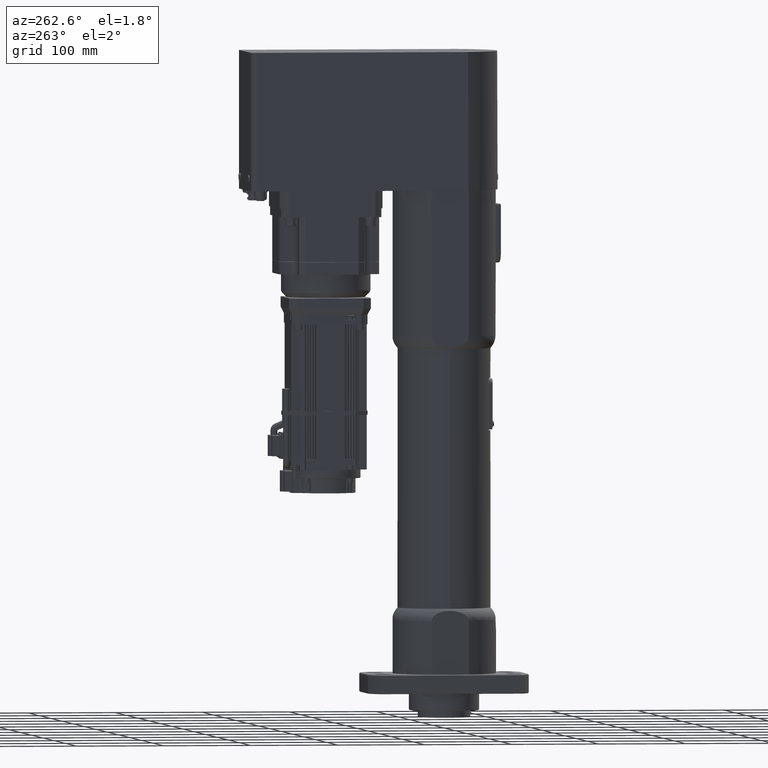
[diagram: clean part render]
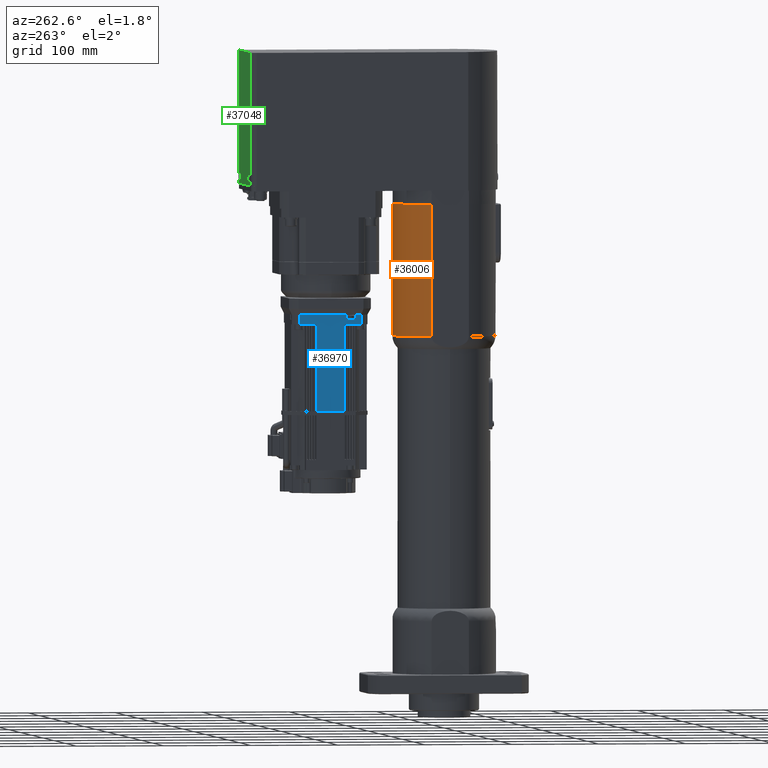
[diagram: same view with three faces highlighted in distinct colors, each labeled with its STEP entity id]
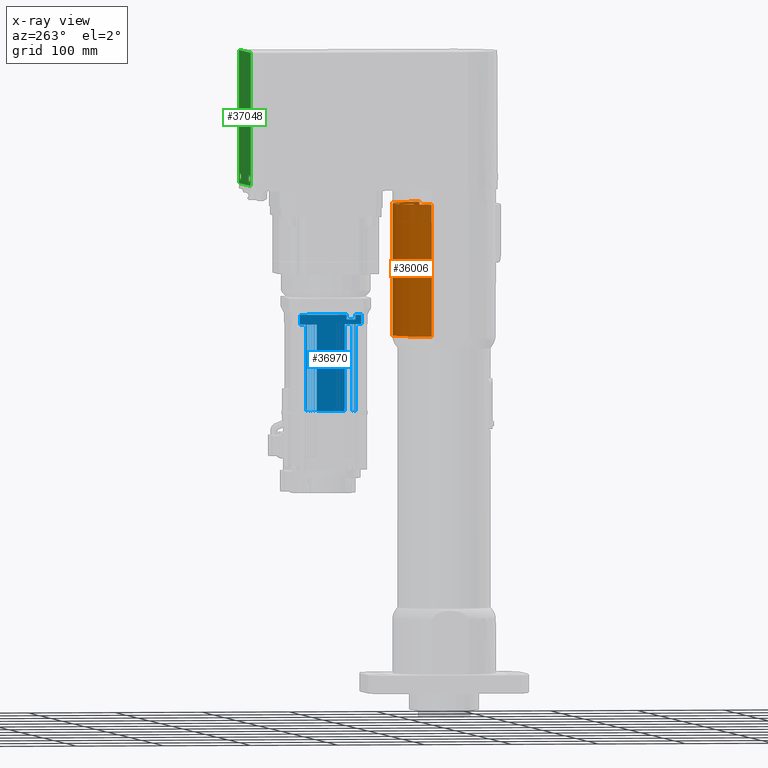
[diagram: x-ray of the same camera — body ghosted, the three highlighted faces saturated]
A machine part, auxiliary view with three faces highlighted in distinct colors.
The next image is the same camera in x-ray (body ghosted, the three faces saturated) — at least one of them is partly hidden behind the body in this view.
Their STEP definitions:

[orange] entity #36006 — the highlighted cylindrical surface (partial cylindrical patch) has radius 59 mm, axis along (-0, 0, 1).
#2676=FACE_OUTER_BOUND('',#4662,.T.);
#4662=EDGE_LOOP('',(#25355,#25356,#25357,#25358));
#6688=CIRCLE('',#38261,58.9999999999999);
#6863=CIRCLE('',#38623,59.0000000000015);
#8871=LINE('',#56543,#11638);
#8872=LINE('',#56544,#11639);
#11638=VECTOR('',#44380,10.);
#11639=VECTOR('',#44381,10.);
#14545=VERTEX_POINT('',#55377);
#14547=VERTEX_POINT('',#55383);
#14814=VERTEX_POINT('',#56457);
#14815=VERTEX_POINT('',#56493);
#18352=EDGE_CURVE('',#14545,#14547,#6688,.T.);
#18792=EDGE_CURVE('',#14814,#14815,#6863,.T.);
#18799=EDGE_CURVE('',#14814,#14547,#8871,.T.);
#18800=EDGE_CURVE('',#14545,#14815,#8872,.T.);
#25355=ORIENTED_EDGE('',*,*,#18799,.T.);
#25356=ORIENTED_EDGE('',*,*,#18352,.F.);
#25357=ORIENTED_EDGE('',*,*,#18800,.T.);
#25358=ORIENTED_EDGE('',*,*,#18792,.F.);
#33266=CYLINDRICAL_SURFACE('',#38628,59.);
#36006=ADVANCED_FACE('',(#2676),#33266,.T.);
#38261=AXIS2_PLACEMENT_3D('',#55384,#43438,#43439);
#38623=AXIS2_PLACEMENT_3D('',#56494,#44368,#44369);
#38628=AXIS2_PLACEMENT_3D('',#56542,#44378,#44379);
#43438=DIRECTION('center_axis',(-5.40408011473649E-16,5.62947358965345E-15,
1.));
#43439=DIRECTION('ref_axis',(0.932203389831797,0.361934855997742,-1.53373253282632E-15));
#44368=DIRECTION('center_axis',(5.35651779418735E-16,-5.62947358965345E-15,
-1.));
#44369=DIRECTION('ref_axis',(-0.932720166980504,0.360601012350022,-2.52960709256959E-15));
#44378=DIRECTION('center_axis',(-5.35651779418735E-16,5.62947358965345E-15,
1.));
#44379=DIRECTION('ref_axis',(-1.,3.43179211569662E-12,-5.35651779438055E-16));
#44380=DIRECTION('',(-5.35651779418735E-16,5.62947358965345E-15,1.));
#44381=DIRECTION('',(5.35651779418735E-16,-5.62947358965345E-15,-1.));
#55377=CARTESIAN_POINT('',(55.0000000000778,21.3541565040145,558.000000000004));
#55383=CARTESIAN_POINT('',(-54.999999999924,21.3541565044011,558.000000000004));
#55384=CARTESIAN_POINT('Origin',(1.81863061457175E-12,1.47781006703139E-10,
558.000000000004));
#56457=CARTESIAN_POINT('',(-54.9999999999253,21.3541565043827,407.282856857088));
#56493=CARTESIAN_POINT('',(55.0000000000733,21.3541565040017,407.282856857088));
#56494=CARTESIAN_POINT('Origin',(-2.6808714355797E-13,1.31301581851941E-10,
407.282856857088));
#56542=CARTESIAN_POINT('Origin',(4.54299374049786E-14,1.27735076589155E-10,
393.000000000001));
#56543=CARTESIAN_POINT('',(-54.9999999999253,21.3541565043826,393.));
#56544=CARTESIAN_POINT('',(55.0000000000733,21.3541565040016,393.000000000001));

[blue] entity #36970 — the highlighted planar face has unit normal (-1, -0, 0).
#1555=PLANE('',#40421);
#3640=FACE_OUTER_BOUND('',#5707,.T.);
#5707=EDGE_LOOP('',(#30461,#30462,#30463,#30464,#30465,#30466,#30467,#30468,
#30469,#30470,#30471,#30472,#30473,#30474,#30475,#30476,#30477,#30478,#30479,
#30480,#30481,#30482,#30483,#30484,#30485,#30486,#30487,#30488,#30489,#30490,
#30491,#30492,#30493,#30494,#30495,#30496,#30497,#30498,#30499,#30500,#30501,
#30502,#30503,#30504));
#9068=LINE('',#57528,#11835);
#9070=LINE('',#57531,#11837);
#9493=LINE('',#59920,#12260);
#9494=LINE('',#59925,#12261);
#9621=LINE('',#60313,#12388);
#10151=LINE('',#62043,#12918);
#10161=LINE('',#62072,#12928);
#10171=LINE('',#62101,#12938);
#10181=LINE('',#62130,#12948);
#10191=LINE('',#62159,#12958);
#10201=LINE('',#62188,#12968);
#10211=LINE('',#62217,#12978);
#10221=LINE('',#62246,#12988);
#10294=LINE('',#62398,#13061);
#10296=LINE('',#62403,#13063);
#10302=LINE('',#62414,#13069);
#10304=LINE('',#62419,#13071);
#10310=LINE('',#62430,#13077);
#10312=LINE('',#62435,#13079);
#10318=LINE('',#62446,#13085);
#10320=LINE('',#62451,#13087);
#10326=LINE('',#62462,#13093);
#10328=LINE('',#62467,#13095);
#10334=LINE('',#62478,#13101);
#10336=LINE('',#62483,#13103);
#10342=LINE('',#62494,#13109);
#10344=LINE('',#62499,#13111);
#10350=LINE('',#62510,#13117);
#10352=LINE('',#62515,#13119);
#10392=LINE('',#62622,#13159);
#10394=LINE('',#62631,#13161);
#10397=LINE('',#62636,#13164);
#10457=LINE('',#62797,#13224);
#10458=LINE('',#62798,#13225);
#10459=LINE('',#62799,#13226);
#10460=LINE('',#62800,#13227);
#10461=LINE('',#62801,#13228);
#10462=LINE('',#62802,#13229);
#10463=LINE('',#62803,#13230);
#10464=LINE('',#62804,#13231);
#10465=LINE('',#62805,#13232);
#10466=LINE('',#62807,#13233);
#10467=LINE('',#62809,#13234);
#10468=LINE('',#62810,#13235);
#11835=VECTOR('',#45163,70.53367989833);
#11837=VECTOR('',#45165,70.53367989833);
#12260=VECTOR('',#46812,10.);
#12261=VECTOR('',#46817,10.);
#12388=VECTOR('',#47154,10.);
#12918=VECTOR('',#48834,10.);
#12928=VECTOR('',#48858,10.);
#12938=VECTOR('',#48882,10.);
#12948=VECTOR('',#48906,10.);
#12958=VECTOR('',#48930,10.);
#12968=VECTOR('',#48954,10.);
#12978=VECTOR('',#48978,10.);
#12988=VECTOR('',#49002,10.);
#13061=VECTOR('',#49153,10.);
#13063=VECTOR('',#49159,10.);
#13069=VECTOR('',#49169,10.);
#13071=VECTOR('',#49175,10.);
#13077=VECTOR('',#49185,10.);
#13079=VECTOR('',#49191,10.);
#13085=VECTOR('',#49201,10.);
#13087=VECTOR('',#49207,10.);
#13093=VECTOR('',#49217,10.);
#13095=VECTOR('',#49223,10.);
#13101=VECTOR('',#49233,10.);
#13103=VECTOR('',#49239,10.);
#13109=VECTOR('',#49249,10.);
#13111=VECTOR('',#49255,10.);
#13117=VECTOR('',#49265,10.);
#13119=VECTOR('',#49271,10.);
#13159=VECTOR('',#49377,10.);
#13161=VECTOR('',#49387,10.);
#13164=VECTOR('',#49394,10.);
#13224=VECTOR('',#49552,10.);
#13225=VECTOR('',#49553,10.);
#13226=VECTOR('',#49554,10.);
#13227=VECTOR('',#49555,10.);
#13228=VECTOR('',#49556,10.);
#13229=VECTOR('',#49557,10.);
#13230=VECTOR('',#49558,10.);
#13231=VECTOR('',#49559,10.);
#13232=VECTOR('',#49560,10.);
#13233=VECTOR('',#49561,10.);
#13234=VECTOR('',#49562,10.);
#13235=VECTOR('',#49563,10.);
#15044=VERTEX_POINT('',#57423);
#15046=VERTEX_POINT('',#57434);
#15068=VERTEX_POINT('',#57527);
#15069=VERTEX_POINT('',#57529);
#15589=VERTEX_POINT('',#59916);
#15592=VERTEX_POINT('',#59923);
#15736=VERTEX_POINT('',#60310);
#15737=VERTEX_POINT('',#60312);
#16298=VERTEX_POINT('',#62041);
#16299=VERTEX_POINT('',#62042);
#16310=VERTEX_POINT('',#62070);
#16311=VERTEX_POINT('',#62071);
#16322=VERTEX_POINT('',#62099);
#16323=VERTEX_POINT('',#62100);
#16334=VERTEX_POINT('',#62128);
#16335=VERTEX_POINT('',#62129);
#16346=VERTEX_POINT('',#62157);
#16347=VERTEX_POINT('',#62158);
#16358=VERTEX_POINT('',#62186);
#16359=VERTEX_POINT('',#62187);
#16370=VERTEX_POINT('',#62215);
#16371=VERTEX_POINT('',#62216);
#16382=VERTEX_POINT('',#62244);
#16383=VERTEX_POINT('',#62245);
#16423=VERTEX_POINT('',#62396);
#16424=VERTEX_POINT('',#62402);
#16427=VERTEX_POINT('',#62412);
#16428=VERTEX_POINT('',#62418);
#16431=VERTEX_POINT('',#62428);
#16432=VERTEX_POINT('',#62434);
#16435=VERTEX_POINT('',#62444);
#16436=VERTEX_POINT('',#62450);
#16439=VERTEX_POINT('',#62460);
#16440=VERTEX_POINT('',#62466);
#16443=VERTEX_POINT('',#62476);
#16444=VERTEX_POINT('',#62482);
#16447=VERTEX_POINT('',#62492);
#16448=VERTEX_POINT('',#62498);
#16451=VERTEX_POINT('',#62508);
#16452=VERTEX_POINT('',#62514);
#16484=VERTEX_POINT('',#62618);
#16486=VERTEX_POINT('',#62621);
#16542=VERTEX_POINT('',#62806);
#16543=VERTEX_POINT('',#62808);
#19181=EDGE_CURVE('',#15068,#15046,#9068,.T.);
#19183=EDGE_CURVE('',#15044,#15069,#9070,.T.);
#20018=EDGE_CURVE('',#15044,#15589,#9493,.T.);
#20020=EDGE_CURVE('',#15046,#15592,#9494,.T.);
#20209=EDGE_CURVE('',#15737,#15736,#9621,.T.);
#21032=EDGE_CURVE('',#16298,#16299,#10151,.T.);
#21046=EDGE_CURVE('',#16310,#16311,#10161,.T.);
#21060=EDGE_CURVE('',#16322,#16323,#10171,.T.);
#21074=EDGE_CURVE('',#16334,#16335,#10181,.T.);
#21088=EDGE_CURVE('',#16346,#16347,#10191,.T.);
#21102=EDGE_CURVE('',#16358,#16359,#10201,.T.);
#21116=EDGE_CURVE('',#16370,#16371,#10211,.T.);
#21130=EDGE_CURVE('',#16382,#16383,#10221,.T.);
#21207=EDGE_CURVE('',#16423,#16323,#10294,.T.);
#21209=EDGE_CURVE('',#16322,#16424,#10296,.T.);
#21215=EDGE_CURVE('',#16427,#16371,#10302,.T.);
#21217=EDGE_CURVE('',#16370,#16428,#10304,.T.);
#21223=EDGE_CURVE('',#16431,#16359,#10310,.T.);
#21225=EDGE_CURVE('',#16358,#16432,#10312,.T.);
#21231=EDGE_CURVE('',#16435,#16311,#10318,.T.);
#21233=EDGE_CURVE('',#16310,#16436,#10320,.T.);
#21239=EDGE_CURVE('',#16439,#16335,#10326,.T.);
#21241=EDGE_CURVE('',#16334,#16440,#10328,.T.);
#21247=EDGE_CURVE('',#16443,#16383,#10334,.T.);
#21249=EDGE_CURVE('',#16382,#16444,#10336,.T.);
#21255=EDGE_CURVE('',#16447,#16347,#10342,.T.);
#21257=EDGE_CURVE('',#16346,#16448,#10344,.T.);
#21263=EDGE_CURVE('',#16451,#16299,#10350,.T.);
#21265=EDGE_CURVE('',#16298,#16452,#10352,.T.);
#21317=EDGE_CURVE('',#16486,#16484,#10392,.T.);
#21322=EDGE_CURVE('',#16484,#15068,#10394,.T.);
#21325=EDGE_CURVE('',#15069,#16486,#10397,.T.);
#21402=EDGE_CURVE('',#16451,#16448,#10457,.T.);
#21403=EDGE_CURVE('',#16447,#16444,#10458,.T.);
#21404=EDGE_CURVE('',#16443,#16440,#10459,.T.);
#21405=EDGE_CURVE('',#16439,#16436,#10460,.T.);
#21406=EDGE_CURVE('',#16435,#16432,#10461,.T.);
#21407=EDGE_CURVE('',#16431,#16428,#10462,.T.);
#21408=EDGE_CURVE('',#16427,#16424,#10463,.T.);
#21409=EDGE_CURVE('',#16423,#15737,#10464,.T.);
#21410=EDGE_CURVE('',#15736,#15589,#10465,.T.);
#21411=EDGE_CURVE('',#15592,#16542,#10466,.T.);
#21412=EDGE_CURVE('',#16542,#16543,#10467,.T.);
#21413=EDGE_CURVE('',#16543,#16452,#10468,.T.);
#30461=ORIENTED_EDGE('',*,*,#21402,.T.);
#30462=ORIENTED_EDGE('',*,*,#21257,.F.);
#30463=ORIENTED_EDGE('',*,*,#21088,.T.);
#30464=ORIENTED_EDGE('',*,*,#21255,.F.);
#30465=ORIENTED_EDGE('',*,*,#21403,.T.);
#30466=ORIENTED_EDGE('',*,*,#21249,.F.);
#30467=ORIENTED_EDGE('',*,*,#21130,.T.);
#30468=ORIENTED_EDGE('',*,*,#21247,.F.);
#30469=ORIENTED_EDGE('',*,*,#21404,.T.);
#30470=ORIENTED_EDGE('',*,*,#21241,.F.);
#30471=ORIENTED_EDGE('',*,*,#21074,.T.);
#30472=ORIENTED_EDGE('',*,*,#21239,.F.);
#30473=ORIENTED_EDGE('',*,*,#21405,.T.);
#30474=ORIENTED_EDGE('',*,*,#21233,.F.);
#30475=ORIENTED_EDGE('',*,*,#21046,.T.);
#30476=ORIENTED_EDGE('',*,*,#21231,.F.);
#30477=ORIENTED_EDGE('',*,*,#21406,.T.);
#30478=ORIENTED_EDGE('',*,*,#21225,.F.);
#30479=ORIENTED_EDGE('',*,*,#21102,.T.);
#30480=ORIENTED_EDGE('',*,*,#21223,.F.);
#30481=ORIENTED_EDGE('',*,*,#21407,.T.);
#30482=ORIENTED_EDGE('',*,*,#21217,.F.);
#30483=ORIENTED_EDGE('',*,*,#21116,.T.);
#30484=ORIENTED_EDGE('',*,*,#21215,.F.);
#30485=ORIENTED_EDGE('',*,*,#21408,.T.);
#30486=ORIENTED_EDGE('',*,*,#21209,.F.);
#30487=ORIENTED_EDGE('',*,*,#21060,.T.);
#30488=ORIENTED_EDGE('',*,*,#21207,.F.);
#30489=ORIENTED_EDGE('',*,*,#21409,.T.);
#30490=ORIENTED_EDGE('',*,*,#20209,.T.);
#30491=ORIENTED_EDGE('',*,*,#21410,.T.);
#30492=ORIENTED_EDGE('',*,*,#20018,.F.);
#30493=ORIENTED_EDGE('',*,*,#19183,.T.);
#30494=ORIENTED_EDGE('',*,*,#21325,.T.);
#30495=ORIENTED_EDGE('',*,*,#21317,.T.);
#30496=ORIENTED_EDGE('',*,*,#21322,.T.);
#30497=ORIENTED_EDGE('',*,*,#19181,.T.);
#30498=ORIENTED_EDGE('',*,*,#20020,.T.);
#30499=ORIENTED_EDGE('',*,*,#21411,.T.);
#30500=ORIENTED_EDGE('',*,*,#21412,.T.);
#30501=ORIENTED_EDGE('',*,*,#21413,.T.);
#30502=ORIENTED_EDGE('',*,*,#21265,.F.);
#30503=ORIENTED_EDGE('',*,*,#21032,.T.);
#30504=ORIENTED_EDGE('',*,*,#21263,.F.);
#36970=ADVANCED_FACE('',(#3640),#1555,.T.);
#40421=AXIS2_PLACEMENT_3D('',#62796,#49550,#49551);
#45163=DIRECTION('',(-6.24109060434125E-13,1.,-5.62947358965379E-15));
#45165=DIRECTION('',(-6.24109060434125E-13,1.,-5.62947358965379E-15));
#46812=DIRECTION('',(-2.75130738459485E-16,-5.62947358965396E-15,-1.));
#46817=DIRECTION('',(-2.75130738459485E-16,-5.62947358965396E-15,-1.));
#47154=DIRECTION('',(2.75130738459485E-16,5.62947358965396E-15,1.));
#48834=DIRECTION('',(6.25302550185597E-13,-1.,4.60703461895537E-15));
#48858=DIRECTION('',(6.25302550185597E-13,-1.,6.08733198512224E-15));
#48882=DIRECTION('',(6.25302550185597E-13,-1.,6.08733198512224E-15));
#48906=DIRECTION('',(6.25302550185597E-13,-1.,6.08733198512224E-15));
#48930=DIRECTION('',(6.25302550185597E-13,-1.,4.60703461895537E-15));
#48954=DIRECTION('',(6.25302550185597E-13,-1.,4.60703461895537E-15));
#48978=DIRECTION('',(6.25302550185597E-13,-1.,4.60703461895537E-15));
#49002=DIRECTION('',(6.25302550185597E-13,-1.,6.08733198512224E-15));
#49153=DIRECTION('',(2.75130738460098E-16,4.65029006147341E-15,1.));
#49159=DIRECTION('',(-2.75130738460089E-16,-4.66470854231269E-15,-1.));
#49169=DIRECTION('',(2.75130738460152E-16,4.56377917643768E-15,1.));
#49175=DIRECTION('',(-2.75130738460106E-16,-4.63587158063412E-15,-1.));
#49185=DIRECTION('',(2.75130738460377E-16,4.20331715545548E-15,1.));
#49191=DIRECTION('',(-2.75130738460359E-16,-4.23215411713406E-15,-1.));
#49201=DIRECTION('',(2.75130738460287E-16,4.34750196384836E-15,1.));
#49207=DIRECTION('',(-2.75130738460197E-16,-4.49168677224124E-15,-1.));
#49217=DIRECTION('',(2.75130738460089E-16,4.66470854231269E-15,1.));
#49223=DIRECTION('',(-2.75130738460052E-16,-4.72238246566984E-15,-1.));
#49233=DIRECTION('',(2.751307384598E-16,5.1260999291699E-15,1.));
#49239=DIRECTION('',(-2.751307384598E-16,-5.1260999291699E-15,-1.));
#49249=DIRECTION('',(2.75130738460089E-16,4.66470854231269E-15,1.));
#49255=DIRECTION('',(-2.75130738460089E-16,-4.66470854231269E-15,-1.));
#49265=DIRECTION('',(2.75130738460125E-16,4.60703461895554E-15,1.));
#49271=DIRECTION('',(-2.75130738460016E-16,-4.78005638902699E-15,-1.));
#49377=DIRECTION('',(-6.25302550185597E-13,1.,-5.11825410430458E-15));
#49387=DIRECTION('',(2.75130738459805E-16,5.11825410430475E-15,1.));
#49394=DIRECTION('',(-2.75130738459805E-16,-5.11825410430475E-15,-1.));
#49550=DIRECTION('center_axis',(-1.,-6.25302550185597E-13,2.75130738463005E-16));
#49551=DIRECTION('ref_axis',(-6.25302550185597E-13,1.,-5.62947358965379E-15));
#49552=DIRECTION('',(6.25302550185597E-13,-1.,5.62947358965379E-15));
#49553=DIRECTION('',(6.25302550185597E-13,-1.,5.62947358965379E-15));
#49554=DIRECTION('',(6.25302550185597E-13,-1.,5.62947358965379E-15));
#49555=DIRECTION('',(6.25302550185597E-13,-1.,5.62947358965379E-15));
#49556=DIRECTION('',(6.25302550185597E-13,-1.,5.62947358965379E-15));
#49557=DIRECTION('',(6.25302550185597E-13,-1.,5.62947358965379E-15));
#49558=DIRECTION('',(6.25302550185597E-13,-1.,5.62947358965379E-15));
#49559=DIRECTION('',(6.25302550185597E-13,-1.,5.62947358965379E-15));
#49560=DIRECTION('',(6.25302550185597E-13,-1.,5.62947358965379E-15));
#49561=DIRECTION('',(6.25302550185597E-13,-1.,5.62947358965379E-15));
#49562=DIRECTION('',(-2.75130738459485E-16,-5.62947358965396E-15,-1.));
#49563=DIRECTION('',(6.25302550185597E-13,-1.,5.62947358965379E-15));
#57423=CARTESIAN_POINT('',(-43.5000000000883,100.733160050997,432.50000000001));
#57434=CARTESIAN_POINT('',(-43.5000000001323,171.266839949317,432.50000000001));
#57527=CARTESIAN_POINT('',(-43.5000000000988,117.500000000156,432.50000000001));
#57528=CARTESIAN_POINT('',(-43.5000000000883,100.733160050997,432.50000000001));
#57529=CARTESIAN_POINT('',(-43.5000000000925,107.500000000156,432.50000000001));
#57531=CARTESIAN_POINT('',(-43.5000000000883,100.733160050997,432.50000000001));
#59916=CARTESIAN_POINT('',(-43.5000000000883,100.733160050992,421.50000000001));
#59920=CARTESIAN_POINT('',(-43.5000000000883,100.733160050992,432.50000000001));
#59923=CARTESIAN_POINT('',(-43.5000000001324,171.266839949321,421.50000000001));
#59925=CARTESIAN_POINT('',(-43.5000000001324,171.266839949321,432.50000000001));
#60310=CARTESIAN_POINT('',(-43.5000000000925,107.500000000156,421.50000000001));
#60312=CARTESIAN_POINT('',(-43.5000000000925,107.500000000156,322.50000000001));
#60313=CARTESIAN_POINT('',(-43.5000000000925,107.500000000156,344.00000000001));
#62041=CARTESIAN_POINT('',(-43.5000000001276,163.600000000156,421.50000000001));
#62042=CARTESIAN_POINT('',(-43.5000000001259,160.900000000156,421.50000000001));
#62043=CARTESIAN_POINT('',(-43.5000000001077,131.866580025574,421.50000000001));
#62070=CARTESIAN_POINT('',(-43.5000000001004,120.100000000156,421.50000000001));
#62071=CARTESIAN_POINT('',(-43.5000000000987,117.400000000156,421.50000000001));
#62072=CARTESIAN_POINT('',(-43.5000000000941,110.116580025574,421.50000000001));
#62099=CARTESIAN_POINT('',(-43.5000000000947,111.100000000156,421.50000000001));
#62100=CARTESIAN_POINT('',(-43.5000000000931,108.400000000156,421.50000000001));
#62101=CARTESIAN_POINT('',(-43.5000000000913,105.616580025574,421.50000000001));
#62128=CARTESIAN_POINT('',(-43.5000000001219,154.600000000156,421.50000000001));
#62129=CARTESIAN_POINT('',(-43.5000000001202,151.900000000156,421.50000000001));
#62130=CARTESIAN_POINT('',(-43.5000000001049,127.366580025574,421.50000000001));
#62157=CARTESIAN_POINT('',(-43.5000000001257,160.600000000156,421.50000000001));
#62158=CARTESIAN_POINT('',(-43.500000000124,157.900000000156,421.50000000001));
#62159=CARTESIAN_POINT('',(-43.5000000001068,130.366580025574,421.50000000001));
#62186=CARTESIAN_POINT('',(-43.5000000000985,117.100000000156,421.50000000001));
#62187=CARTESIAN_POINT('',(-43.5000000000968,114.400000000156,421.50000000001));
#62188=CARTESIAN_POINT('',(-43.5000000000932,108.616580025574,421.50000000001));
#62215=CARTESIAN_POINT('',(-43.5000000000966,114.100000000156,421.50000000001));
#62216=CARTESIAN_POINT('',(-43.5000000000949,111.400000000156,421.50000000001));
#62217=CARTESIAN_POINT('',(-43.5000000000922,107.116580025574,421.50000000001));
#62244=CARTESIAN_POINT('',(-43.5000000001238,157.600000000156,421.50000000001));
#62245=CARTESIAN_POINT('',(-43.5000000001221,154.900000000156,421.50000000001));
#62246=CARTESIAN_POINT('',(-43.5000000001058,128.866580025574,421.50000000001));
#62396=CARTESIAN_POINT('',(-43.5000000000931,108.400000000156,322.50000000001));
#62398=CARTESIAN_POINT('',(-43.5000000000931,108.400000000156,427.00000000001));
#62402=CARTESIAN_POINT('',(-43.5000000000948,111.100000000156,322.50000000001));
#62403=CARTESIAN_POINT('',(-43.5000000000948,111.100000000156,350.00000000001));
#62412=CARTESIAN_POINT('',(-43.5000000000949,111.400000000156,322.50000000001));
#62414=CARTESIAN_POINT('',(-43.5000000000949,111.400000000156,427.00000000001));
#62418=CARTESIAN_POINT('',(-43.5000000000966,114.100000000156,322.50000000001));
#62419=CARTESIAN_POINT('',(-43.5000000000966,114.100000000156,350.00000000001));
#62428=CARTESIAN_POINT('',(-43.5000000000968,114.400000000156,322.50000000001));
#62430=CARTESIAN_POINT('',(-43.5000000000968,114.400000000156,427.00000000001));
#62434=CARTESIAN_POINT('',(-43.5000000000985,117.100000000156,322.50000000001));
#62435=CARTESIAN_POINT('',(-43.5000000000985,117.100000000156,350.00000000001));
#62444=CARTESIAN_POINT('',(-43.5000000000987,117.400000000156,322.50000000001));
#62446=CARTESIAN_POINT('',(-43.5000000000987,117.400000000156,427.00000000001));
#62450=CARTESIAN_POINT('',(-43.5000000001004,120.100000000156,322.50000000001));
#62451=CARTESIAN_POINT('',(-43.5000000001004,120.100000000156,350.00000000001));
#62460=CARTESIAN_POINT('',(-43.5000000001203,151.900000000156,322.50000000001));
#62462=CARTESIAN_POINT('',(-43.5000000001202,151.900000000156,427.00000000001));
#62466=CARTESIAN_POINT('',(-43.500000000122,154.600000000156,322.50000000001));
#62467=CARTESIAN_POINT('',(-43.500000000122,154.600000000156,350.00000000001));
#62476=CARTESIAN_POINT('',(-43.5000000001222,154.900000000156,322.50000000001));
#62478=CARTESIAN_POINT('',(-43.5000000001221,154.900000000156,427.00000000001));
#62482=CARTESIAN_POINT('',(-43.5000000001238,157.600000000156,322.50000000001));
#62483=CARTESIAN_POINT('',(-43.5000000001238,157.600000000156,350.00000000001));
#62492=CARTESIAN_POINT('',(-43.500000000124,157.900000000156,322.50000000001));
#62494=CARTESIAN_POINT('',(-43.500000000124,157.900000000156,427.00000000001));
#62498=CARTESIAN_POINT('',(-43.5000000001257,160.600000000156,322.50000000001));
#62499=CARTESIAN_POINT('',(-43.5000000001257,160.600000000156,350.00000000001));
#62508=CARTESIAN_POINT('',(-43.5000000001259,160.900000000156,322.50000000001));
#62510=CARTESIAN_POINT('',(-43.5000000001259,160.900000000156,427.00000000001));
#62514=CARTESIAN_POINT('',(-43.5000000001276,163.600000000156,322.50000000001));
#62515=CARTESIAN_POINT('',(-43.5000000001276,163.600000000156,350.00000000001));
#62618=CARTESIAN_POINT('',(-43.5000000000988,117.500000000156,427.00000000001));
#62621=CARTESIAN_POINT('',(-43.5000000000925,107.500000000156,427.00000000001));
#62622=CARTESIAN_POINT('',(-43.5000000000919,106.616580025574,427.00000000001));
#62631=CARTESIAN_POINT('',(-43.5000000000987,117.500000000156,432.50000000001));
#62636=CARTESIAN_POINT('',(-43.5000000000925,107.500000000156,432.50000000001));
#62796=CARTESIAN_POINT('Origin',(-43.5000000000883,100.733160050992,432.50000000001));
#62797=CARTESIAN_POINT('',(-43.5000000001006,120.366580025574,322.50000000001));
#62798=CARTESIAN_POINT('',(-43.5000000001006,120.366580025574,322.50000000001));
#62799=CARTESIAN_POINT('',(-43.5000000001006,120.366580025574,322.50000000001));
#62800=CARTESIAN_POINT('',(-43.5000000001006,120.366580025574,322.50000000001));
#62801=CARTESIAN_POINT('',(-43.5000000001006,120.366580025574,322.50000000001));
#62802=CARTESIAN_POINT('',(-43.5000000001006,120.366580025574,322.50000000001));
#62803=CARTESIAN_POINT('',(-43.5000000001006,120.366580025574,322.50000000001));
#62804=CARTESIAN_POINT('',(-43.5000000001006,120.366580025574,322.50000000001));
#62805=CARTESIAN_POINT('',(-43.500000000088,100.366580025574,421.50000000001));
#62806=CARTESIAN_POINT('',(-43.5000000001281,164.500000000156,421.50000000001));
#62807=CARTESIAN_POINT('',(-43.5000000001105,136.366580025574,421.50000000001));
#62808=CARTESIAN_POINT('',(-43.5000000001282,164.500000000156,322.50000000001));
#62809=CARTESIAN_POINT('',(-43.5000000001282,164.500000000156,344.00000000001));
#62810=CARTESIAN_POINT('',(-43.5000000001006,120.366580025574,322.50000000001));

[green] entity #37048 — the highlighted planar face has unit normal (0, 1, -0).
#411=FACE_BOUND('',#5791,.T.);
#412=FACE_BOUND('',#5792,.T.);
#1616=PLANE('',#40536);
#3718=FACE_OUTER_BOUND('',#5790,.T.);
#5790=EDGE_LOOP('',(#31251,#31252,#31253,#31254));
#5791=EDGE_LOOP('',(#31255,#31256));
#5792=EDGE_LOOP('',(#31257,#31258));
#6558=CIRCLE('',#37967,4.);
#6559=CIRCLE('',#37968,4.);
#7723=CIRCLE('',#40537,4.);
#7724=CIRCLE('',#40538,4.);
#8749=LINE('',#55647,#11516);
#10648=LINE('',#63171,#13415);
#10653=LINE('',#63180,#13420);
#10654=LINE('',#63182,#13421);
#11516=VECTOR('',#43722,10.);
#13415=VECTOR('',#49963,10.);
#13420=VECTOR('',#49976,10.);
#13421=VECTOR('',#49979,10.);
#14234=VERTEX_POINT('',#53886);
#14235=VERTEX_POINT('',#53887);
#14611=VERTEX_POINT('',#55644);
#14612=VERTEX_POINT('',#55646);
#16613=VERTEX_POINT('',#63168);
#16614=VERTEX_POINT('',#63170);
#16615=VERTEX_POINT('',#63183);
#16616=VERTEX_POINT('',#63184);
#17900=EDGE_CURVE('',#14234,#14235,#6558,.T.);
#17901=EDGE_CURVE('',#14235,#14234,#6559,.T.);
#18481=EDGE_CURVE('',#14611,#14612,#8749,.T.);
#21629=EDGE_CURVE('',#16613,#16614,#10648,.T.);
#21635=EDGE_CURVE('',#14612,#16613,#10653,.T.);
#21636=EDGE_CURVE('',#14611,#16614,#10654,.T.);
#21637=EDGE_CURVE('',#16615,#16616,#7723,.T.);
#21638=EDGE_CURVE('',#16616,#16615,#7724,.T.);
#31251=ORIENTED_EDGE('',*,*,#18481,.F.);
#31252=ORIENTED_EDGE('',*,*,#21636,.T.);
#31253=ORIENTED_EDGE('',*,*,#21629,.F.);
#31254=ORIENTED_EDGE('',*,*,#21635,.F.);
#31255=ORIENTED_EDGE('',*,*,#17900,.T.);
#31256=ORIENTED_EDGE('',*,*,#17901,.T.);
#31257=ORIENTED_EDGE('',*,*,#21637,.T.);
#31258=ORIENTED_EDGE('',*,*,#21638,.T.);
#37048=ADVANCED_FACE('',(#3718,#411,#412),#1616,.T.);
#37967=AXIS2_PLACEMENT_3D('',#53888,#42657,#42658);
#37968=AXIS2_PLACEMENT_3D('',#53889,#42659,#42660);
#40536=AXIS2_PLACEMENT_3D('',#63181,#49977,#49978);
#40537=AXIS2_PLACEMENT_3D('',#63185,#49980,#49981);
#40538=AXIS2_PLACEMENT_3D('',#63186,#49982,#49983);
#42657=DIRECTION('center_axis',(-5.58858457084226E-13,-1.,2.48976252555907E-15));
#42658=DIRECTION('ref_axis',(0.772375396901933,-4.24783358390235E-13,-0.635166313858489));
#42659=DIRECTION('center_axis',(-5.58858457084226E-13,-1.,2.48976252555907E-15));
#42660=DIRECTION('ref_axis',(0.772375396901933,-4.24783358390235E-13,-0.635166313858489));
#43722=DIRECTION('',(1.,-3.79131403018998E-13,-3.42795430519056E-16));
#49963=DIRECTION('',(-1.,5.58858457084226E-13,-4.27152203934577E-16));
#49976=DIRECTION('',(-4.27152203933185E-16,2.48976252555931E-15,1.));
#49977=DIRECTION('center_axis',(5.58858457084226E-13,1.,-2.48976252555907E-15));
#49978=DIRECTION('ref_axis',(-1.,5.58858457084226E-13,-4.27152203934577E-16));
#49979=DIRECTION('',(-4.27152203933185E-16,2.48976252555931E-15,1.));
#49980=DIRECTION('center_axis',(-5.58858457084226E-13,-1.,2.48976252555907E-15));
#49981=DIRECTION('ref_axis',(-0.949203899809814,5.31169736297688E-13,0.314661654139555));
#49982=DIRECTION('center_axis',(-5.58858457084226E-13,-1.,2.48976252555907E-15));
#49983=DIRECTION('ref_axis',(-0.949203899809814,5.31169736297688E-13,0.314661654139555));
#53886=CARTESIAN_POINT('',(-36.9104984122797,229.000000000153,585.459334744576));
#53887=CARTESIAN_POINT('',(-43.0895015874952,229.000000000155,590.540665255444));
#53888=CARTESIAN_POINT('Origin',(-39.9999999998875,229.000000000154,588.00000000001));
#53889=CARTESIAN_POINT('Origin',(-39.9999999998875,229.000000000154,588.00000000001));
#55644=CARTESIAN_POINT('',(-50.8999999998785,229.000000000161,580.00000000001));
#55646=CARTESIAN_POINT('',(50.9000000001212,229.000000000104,580.00000000001));
#55647=CARTESIAN_POINT('',(-51.4999999999943,229.000000000163,580.00000000001));
#63168=CARTESIAN_POINT('',(50.9000000001212,229.000000000104,732.00000000001));
#63170=CARTESIAN_POINT('',(-50.8999999998786,229.000000000161,732.00000000001));
#63171=CARTESIAN_POINT('',(50.9000000001212,229.000000000104,732.00000000001));
#63180=CARTESIAN_POINT('',(50.9000000001212,229.000000000104,580.00000000001));
#63181=CARTESIAN_POINT('Origin',(50.9000000001212,229.000000000104,580.00000000001));
#63182=CARTESIAN_POINT('',(-50.8999999998785,229.000000000161,580.00000000001));
#63183=CARTESIAN_POINT('',(36.20318440088,229.000000000112,589.258646616568));
#63184=CARTESIAN_POINT('',(43.7968155993586,229.000000000108,586.741353383452));
#63185=CARTESIAN_POINT('Origin',(40.0000000001193,229.00000000011,588.00000000001));
#63186=CARTESIAN_POINT('Origin',(40.0000000001193,229.00000000011,588.00000000001));